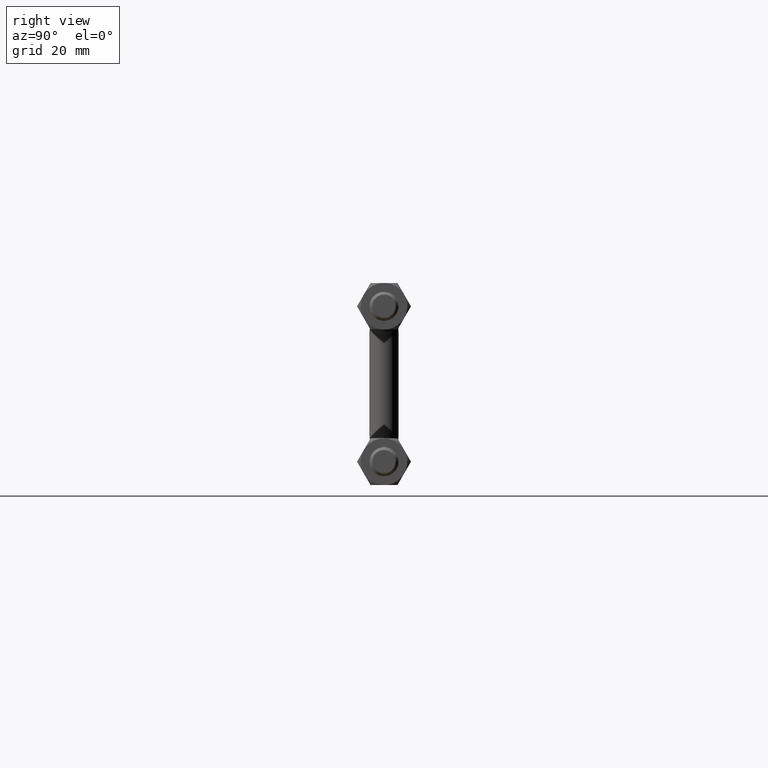
[diagram: clean part render]
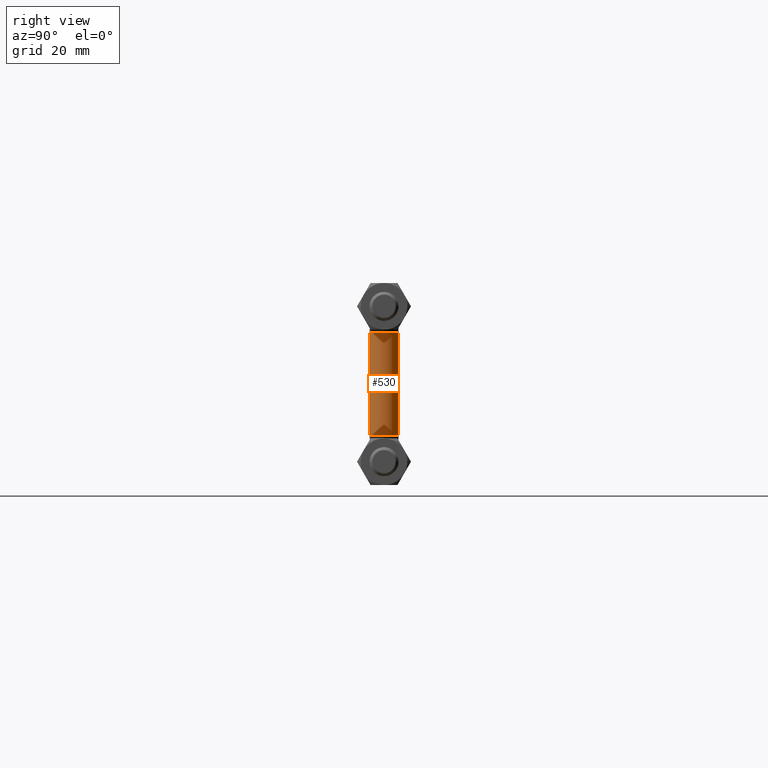
[diagram: same view with one face highlighted and labeled with its STEP entity id]
A machine part, right view. The second image highlights one B-rep face of the part: STEP entity #530.
In plain terms, the highlighted cylindrical surface (edge-blend (fillet) strip) has radius 2.5 mm, axis along (0, 0, -1).
Its self-contained STEP definition (entity closure, byte-faithful):
#7 = LINE ( 'NONE', #525, #967 ) ;
#21 = EDGE_CURVE ( 'NONE', #494, #1269, #923, .T. ) ;
#129 = EDGE_CURVE ( 'NONE', #262, #351, #252, .T. ) ;
#131 = EDGE_CURVE ( 'NONE', #798, #865, #1673, .T. ) ;
#132 = AXIS2_PLACEMENT_3D ( 'NONE', #133, #229, #308 ) ;
#133 = CARTESIAN_POINT ( 'NONE',  ( -85.00000000000015600, -4.500000000000000900, -2.311115933264683000E-030 ) ) ;
#199 = CYLINDRICAL_SURFACE ( 'NONE', #132, 2.500000000000008000 ) ;
#229 = DIRECTION ( 'NONE',  ( 0.0000000000000000000, -1.000000000000000000, 0.0000000000000000000 ) ) ;
#242 = CARTESIAN_POINT ( 'NONE',  ( -85.00000000000015600, -22.10000000000000100, -2.311115933264683000E-030 ) ) ;
#244 = DIRECTION ( 'NONE',  ( 0.0000000000000000000, 0.0000000000000000000, -1.000000000000000000 ) ) ;
#252 = CIRCLE ( 'NONE', #1278, 2.500000000000002200 ) ;
#257 = CARTESIAN_POINT ( 'NONE',  ( -82.50000000004430900, -22.10000000000000100, 5.299445357077093300E-010 ) ) ;
#262 = VERTEX_POINT ( 'NONE', #1443 ) ;
#278 = DIRECTION ( 'NONE',  ( 1.000000000000000000, 0.0000000000000000000, 0.0000000000000000000 ) ) ;
#308 = DIRECTION ( 'NONE',  ( 0.0000000000000000000, 0.0000000000000000000, -1.000000000000000000 ) ) ;
#317 = CARTESIAN_POINT ( 'NONE',  ( -85.00000000000015600, -4.500000000000000900, -2.500000000000002200 ) ) ;
#350 = DIRECTION ( 'NONE',  ( -0.0000000000000000000, 1.000000000000000000, -0.0000000000000000000 ) ) ;
#351 = VERTEX_POINT ( 'NONE', #257 ) ;
#373 = AXIS2_PLACEMENT_3D ( 'NONE', #924, #350, #244 ) ;
#412 = CARTESIAN_POINT ( 'NONE',  ( -85.00000000000015600, -4.500000000000000900, 2.500000000000008000 ) ) ;
#426 = CARTESIAN_POINT ( 'NONE',  ( -85.00000000000015600, -4.500000000000000900, -2.311115933264683000E-030 ) ) ;
#494 = VERTEX_POINT ( 'NONE', #839 ) ;
#525 = CARTESIAN_POINT ( 'NONE',  ( -85.00000000000015600, -4.500000000000000900, -2.500000000000008000 ) ) ;
#527 = VECTOR ( 'NONE', #781, 1000.000000000000000 ) ;
#530 = ADVANCED_FACE ( 'NONE', ( #594 ), #199, .T. ) ;
#586 = CARTESIAN_POINT ( 'NONE',  ( -85.00000000000015600, -22.10000000000000100, -2.311115933264683000E-030 ) ) ;
#593 = DIRECTION ( 'NONE',  ( 0.0000000000000000000, -1.000000000000000000, 0.0000000000000000000 ) ) ;
#594 = FACE_OUTER_BOUND ( 'NONE', #1266, .T. ) ;
#629 = CARTESIAN_POINT ( 'NONE',  ( -82.50000000008844800, -4.500000000000000900, 1.059888994874992900E-009 ) ) ;
#657 = ORIENTED_EDGE ( 'NONE', *, *, #1336, .F. ) ;
#722 = ORIENTED_EDGE ( 'NONE', *, *, #129, .F. ) ;
#781 = DIRECTION ( 'NONE',  ( 0.0000000000000000000, -1.000000000000000000, 0.0000000000000000000 ) ) ;
#798 = VERTEX_POINT ( 'NONE', #629 ) ;
#839 = CARTESIAN_POINT ( 'NONE',  ( -85.00000000000015600, -4.500000000000000900, 2.500000000000002200 ) ) ;
#865 = VERTEX_POINT ( 'NONE', #317 ) ;
#872 = ORIENTED_EDGE ( 'NONE', *, *, #131, .F. ) ;
#903 = ORIENTED_EDGE ( 'NONE', *, *, #21, .T. ) ;
#923 = LINE ( 'NONE', #412, #527 ) ;
#924 = CARTESIAN_POINT ( 'NONE',  ( -85.00000000000015600, -4.500000000000000900, -2.311115933264683000E-030 ) ) ;
#967 = VECTOR ( 'NONE', #976, 1000.000000000000000 ) ;
#976 = DIRECTION ( 'NONE',  ( 0.0000000000000000000, -1.000000000000000000, 0.0000000000000000000 ) ) ;
#1051 = DIRECTION ( 'NONE',  ( 0.0000000000000000000, 0.0000000000000000000, -1.000000000000000000 ) ) ;
#1134 = AXIS2_PLACEMENT_3D ( 'NONE', #426, #1414, #1051 ) ;
#1251 = EDGE_CURVE ( 'NONE', #865, #262, #7, .T. ) ;
#1266 = EDGE_LOOP ( 'NONE', ( #657, #903, #1519, #722, #1656, #872 ) ) ;
#1269 = VERTEX_POINT ( 'NONE', #1522 ) ;
#1278 = AXIS2_PLACEMENT_3D ( 'NONE', #586, #593, #1281 ) ;
#1281 = DIRECTION ( 'NONE',  ( 1.000000000000000000, 0.0000000000000000000, 0.0000000000000000000 ) ) ;
#1311 = AXIS2_PLACEMENT_3D ( 'NONE', #242, #1313, #278 ) ;
#1313 = DIRECTION ( 'NONE',  ( 0.0000000000000000000, -1.000000000000000000, 0.0000000000000000000 ) ) ;
#1336 = EDGE_CURVE ( 'NONE', #494, #798, #1423, .T. ) ;
#1414 = DIRECTION ( 'NONE',  ( -0.0000000000000000000, 1.000000000000000000, -0.0000000000000000000 ) ) ;
#1423 = CIRCLE ( 'NONE', #1134, 2.500000000000008000 ) ;
#1443 = CARTESIAN_POINT ( 'NONE',  ( -85.00000000000015600, -22.10000000000000100, -2.500000000000008000 ) ) ;
#1449 = EDGE_CURVE ( 'NONE', #351, #1269, #1574, .T. ) ;
#1519 = ORIENTED_EDGE ( 'NONE', *, *, #1449, .F. ) ;
#1522 = CARTESIAN_POINT ( 'NONE',  ( -85.00000000000015600, -22.10000000000000100, 2.500000000000008000 ) ) ;
#1574 = CIRCLE ( 'NONE', #1311, 2.500000000000002200 ) ;
#1656 = ORIENTED_EDGE ( 'NONE', *, *, #1251, .F. ) ;
#1673 = CIRCLE ( 'NONE', #373, 2.500000000000008000 ) ;